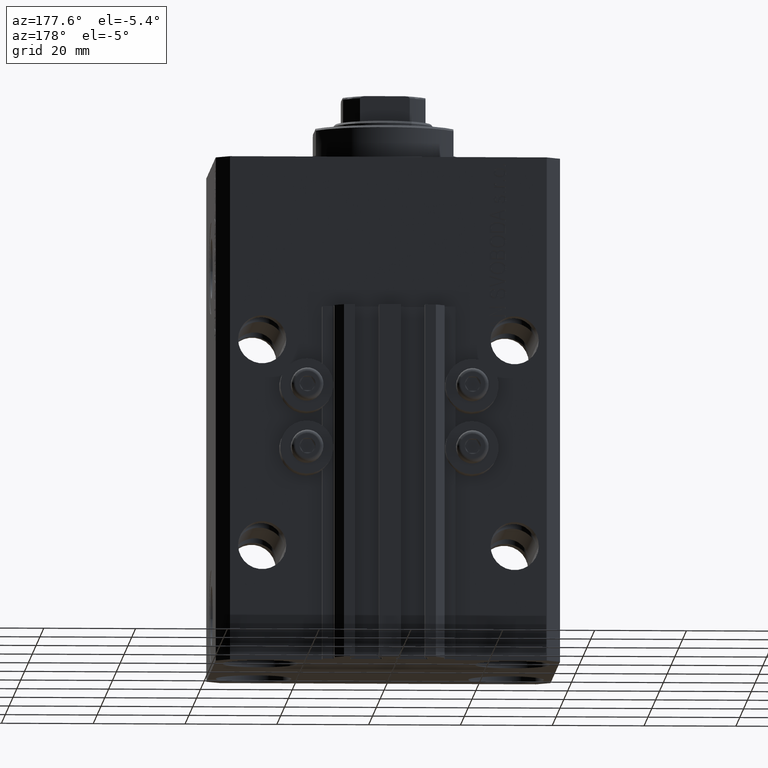
[diagram: clean part render]
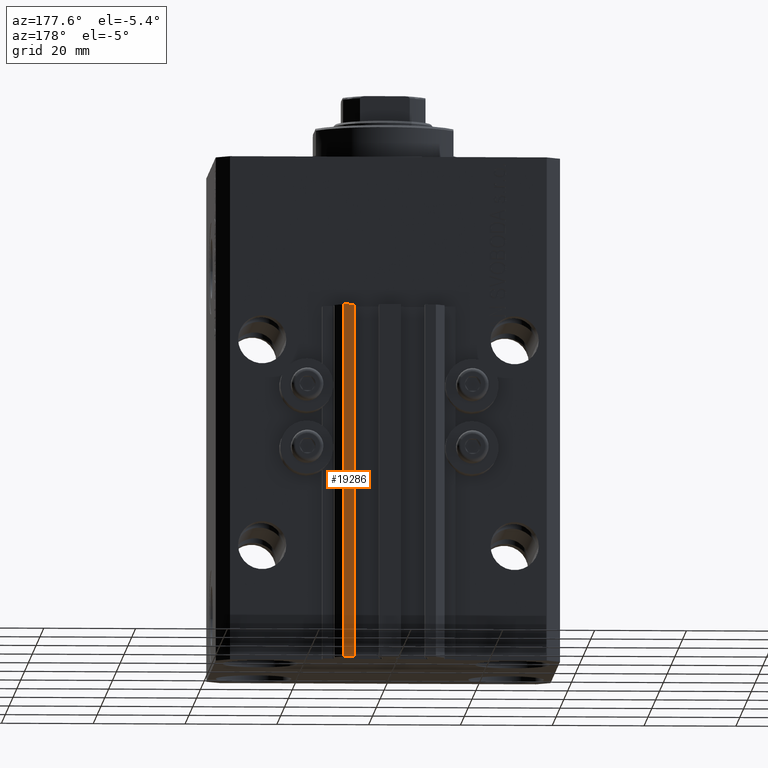
[diagram: same view with one face highlighted and labeled with its STEP entity id]
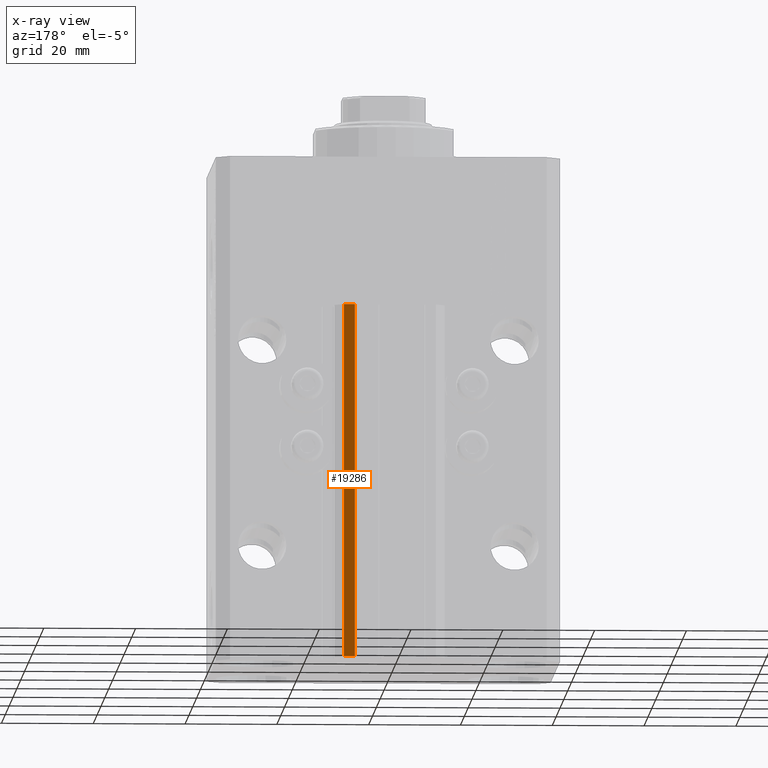
[diagram: x-ray of the same camera — body ghosted, the highlighted face saturated]
A machine part, auxiliary view. The second image highlights one B-rep face of the part: STEP entity #19286.
The next image is the same camera in x-ray: the body ghosted, the highlighted face saturated — about 0% of this face is hidden behind the body in this view.
In plain terms, the highlighted planar face has unit normal (0, 1, 0).
Its self-contained STEP definition (entity closure, byte-faithful):
#739 = DIRECTION ( 'NONE',  ( -1.000000000000000000, 0.000000000000000000, 0.000000000000000000 ) ) ;
#1626 = LINE ( 'NONE', #5499, #8599 ) ;
#1690 = VECTOR ( 'NONE', #739, 1000.000000000000000 ) ;
#4387 = CARTESIAN_POINT ( 'NONE',  ( 9.999999999999998224, 35.50000000000001421, -110.0000000000000000 ) ) ;
#5300 = VERTEX_POINT ( 'NONE', #31061 ) ;
#5499 = CARTESIAN_POINT ( 'NONE',  ( 9.999999999999998224, 35.50000000000001421, -110.0000000000000000 ) ) ;
#6642 = CARTESIAN_POINT ( 'NONE',  ( 7.649999999999998579, 35.50000000000001421, -110.0000000000000000 ) ) ;
#7670 = CARTESIAN_POINT ( 'NONE',  ( 9.999999999999998224, 35.50000000000001421, -33.00000000000000000 ) ) ;
#8048 = ORIENTED_EDGE ( 'NONE', *, *, #37120, .T. ) ;
#8599 = VECTOR ( 'NONE', #45474, 1000.000000000000000 ) ;
#10831 = LINE ( 'NONE', #7670, #18089 ) ;
#11636 = ORIENTED_EDGE ( 'NONE', *, *, #41900, .F. ) ;
#11896 = LINE ( 'NONE', #4387, #1690 ) ;
#12629 = EDGE_LOOP ( 'NONE', ( #11636, #24878, #8048, #14711 ) ) ;
#12637 = CARTESIAN_POINT ( 'NONE',  ( 7.649999999999998579, 35.50000000000001421, -110.0000000000000000 ) ) ;
#14711 = ORIENTED_EDGE ( 'NONE', *, *, #37497, .T. ) ;
#15175 = CARTESIAN_POINT ( 'NONE',  ( 9.999999999999998224, 35.50000000000001421, -33.00000000000000000 ) ) ;
#18089 = VECTOR ( 'NONE', #41334, 1000.000000000000000 ) ;
#18564 = FACE_OUTER_BOUND ( 'NONE', #12629, .T. ) ;
#18749 = LINE ( 'NONE', #6642, #23359 ) ;
#19043 = CARTESIAN_POINT ( 'NONE',  ( 9.999999999999998224, 35.50000000000001421, -110.0000000000000000 ) ) ;
#19286 = ADVANCED_FACE ( 'NONE', ( #18564 ), #26287, .T. ) ;
#20685 = CARTESIAN_POINT ( 'NONE',  ( 9.999999999999998224, 35.50000000000001421, -110.0000000000000000 ) ) ;
#21421 = DIRECTION ( 'NONE',  ( 0.000000000000000000, 0.000000000000000000, 1.000000000000000000 ) ) ;
#23359 = VECTOR ( 'NONE', #21421, 1000.000000000000000 ) ;
#24878 = ORIENTED_EDGE ( 'NONE', *, *, #35798, .F. ) ;
#25534 = VERTEX_POINT ( 'NONE', #12637 ) ;
#26054 = DIRECTION ( 'NONE',  ( 0.000000000000000000, 1.000000000000000000, -0.000000000000000000 ) ) ;
#26287 = PLANE ( 'NONE',  #28379 ) ;
#28379 = AXIS2_PLACEMENT_3D ( 'NONE', #19043, #26054, #29213 ) ;
#29213 = DIRECTION ( 'NONE',  ( 0.000000000000000000, 0.000000000000000000, 1.000000000000000000 ) ) ;
#31061 = CARTESIAN_POINT ( 'NONE',  ( 7.649999999999998579, 35.50000000000001421, -33.00000000000000000 ) ) ;
#35798 = EDGE_CURVE ( 'NONE', #36863, #44412, #1626, .T. ) ;
#36863 = VERTEX_POINT ( 'NONE', #20685 ) ;
#37120 = EDGE_CURVE ( 'NONE', #36863, #25534, #11896, .T. ) ;
#37497 = EDGE_CURVE ( 'NONE', #25534, #5300, #18749, .T. ) ;
#41334 = DIRECTION ( 'NONE',  ( -1.000000000000000000, 0.000000000000000000, 0.000000000000000000 ) ) ;
#41900 = EDGE_CURVE ( 'NONE', #44412, #5300, #10831, .T. ) ;
#44412 = VERTEX_POINT ( 'NONE', #15175 ) ;
#45474 = DIRECTION ( 'NONE',  ( 0.000000000000000000, 0.000000000000000000, 1.000000000000000000 ) ) ;